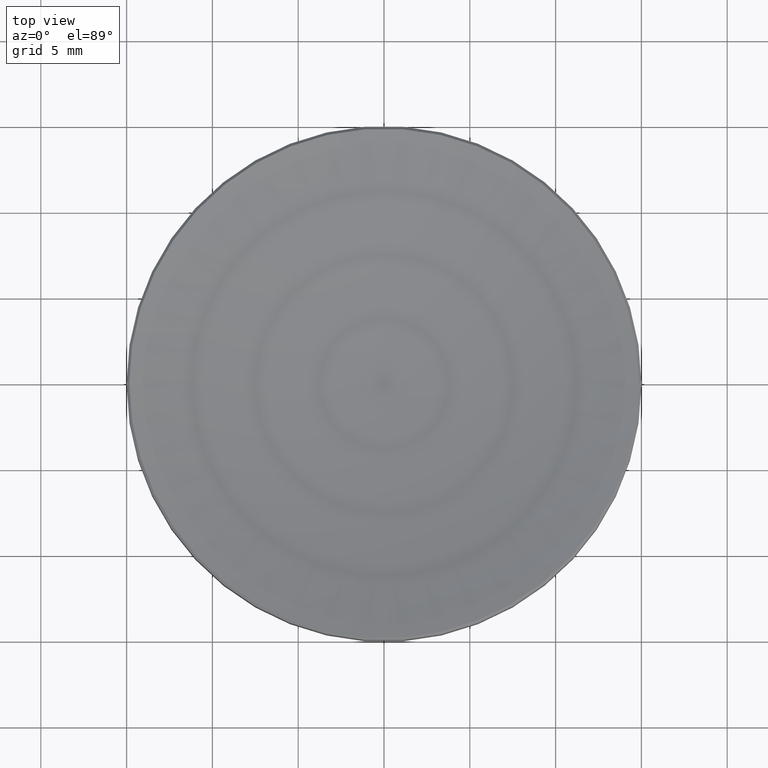
[diagram: clean part render]
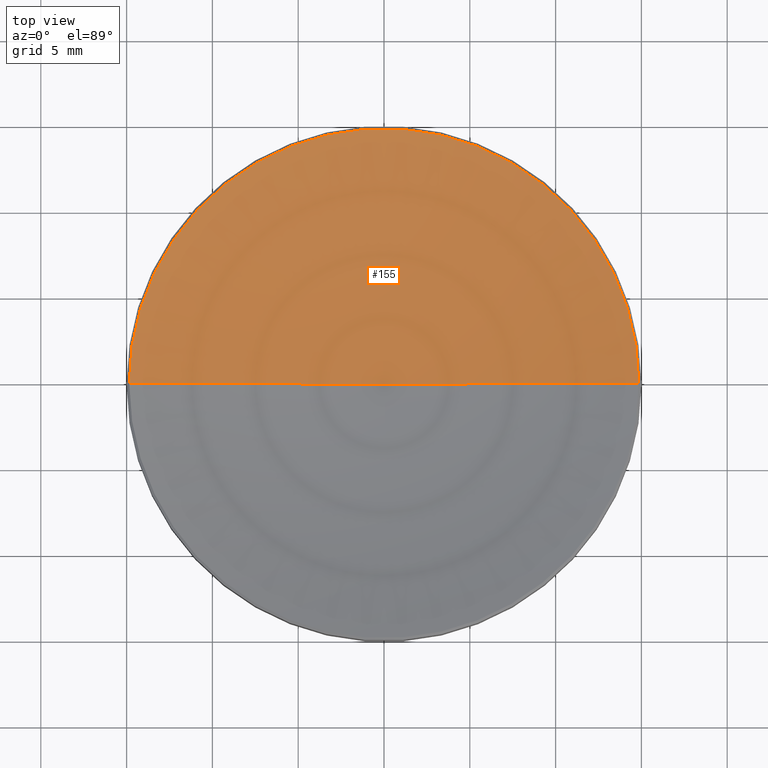
[diagram: same view with one face highlighted and labeled with its STEP entity id]
A machine part, top view. The second image highlights one B-rep face of the part: STEP entity #155.
In plain terms, the highlighted toroidal blend (fillet) surface has major radius 0.0114 mm and minor (blend) radius 51.64 mm.
Its self-contained STEP definition (entity closure, byte-faithful):
#9 = ORIENTED_EDGE ( 'NONE', *, *, #105, .F. ) ;
#17 = ORIENTED_EDGE ( 'NONE', *, *, #228, .T. ) ;
#18 = EDGE_LOOP ( 'NONE', ( #9, #176, #17 ) ) ;
#20 = CARTESIAN_POINT ( 'NONE',  ( 14.84640391126098180, 0.000000000000000000, 4.683596088739042429 ) ) ;
#22 = DIRECTION ( 'NONE',  ( 0.000000000000000000, -1.000000000000000000, 0.000000000000000000 ) ) ;
#31 = DIRECTION ( 'NONE',  ( -0.000000000000000000, -0.000000000000000000, 1.000000000000000000 ) ) ;
#42 = VERTEX_POINT ( 'NONE', #262 ) ;
#45 = CARTESIAN_POINT ( 'NONE',  ( 0.01138314681477931023, -1.394033431094387055E-18, 54.13999874539084800 ) ) ;
#47 = CIRCLE ( 'NONE', #232, 51.64000000000000057 ) ;
#54 = AXIS2_PLACEMENT_3D ( 'NONE', #181, #31, #115 ) ;
#67 = DIRECTION ( 'NONE',  ( -1.000000000000000000, 1.224646799147353207E-16, 0.000000000000000000 ) ) ;
#73 = AXIS2_PLACEMENT_3D ( 'NONE', #108, #87, #212 ) ;
#87 = DIRECTION ( 'NONE',  ( -0.000000000000000000, -0.000000000000000000, 1.000000000000000000 ) ) ;
#105 = EDGE_CURVE ( 'NONE', #139, #42, #47, .T. ) ;
#108 = CARTESIAN_POINT ( 'NONE',  ( 0.000000000000000000, 0.000000000000000000, 54.13999874539084800 ) ) ;
#115 = DIRECTION ( 'NONE',  ( 1.000000000000000000, 0.000000000000000000, 0.000000000000000000 ) ) ;
#129 = FACE_OUTER_BOUND ( 'NONE', #18, .T. ) ;
#139 = VERTEX_POINT ( 'NONE', #150 ) ;
#149 = EDGE_CURVE ( 'NONE', #139, #165, #225, .T. ) ;
#150 = CARTESIAN_POINT ( 'NONE',  ( 0.000000000000000000, 0.000000000000000000, 2.500000000000000000 ) ) ;
#153 = CARTESIAN_POINT ( 'NONE',  ( -0.01138314681477931023, 0.000000000000000000, 54.13999874539084800 ) ) ;
#155 = ADVANCED_FACE ( 'NONE', ( #129 ), #196, .F. ) ;
#165 = VERTEX_POINT ( 'NONE', #20 ) ;
#176 = ORIENTED_EDGE ( 'NONE', *, *, #149, .T. ) ;
#181 = CARTESIAN_POINT ( 'NONE',  ( 0.000000000000000000, 0.000000000000000000, 4.683596088739042429 ) ) ;
#182 = AXIS2_PLACEMENT_3D ( 'NONE', #153, #22, #195 ) ;
#195 = DIRECTION ( 'NONE',  ( 0.000000000000000000, 0.000000000000000000, -1.000000000000000000 ) ) ;
#196 = TOROIDAL_SURFACE ( 'NONE', #73, -0.01138314681477931023, 51.64000000000000057 ) ;
#212 = DIRECTION ( 'NONE',  ( 1.000000000000000000, 0.000000000000000000, 0.000000000000000000 ) ) ;
#225 = CIRCLE ( 'NONE', #182, 51.64000000000000057 ) ;
#228 = EDGE_CURVE ( 'NONE', #165, #42, #241, .T. ) ;
#229 = DIRECTION ( 'NONE',  ( 1.224646799147353207E-16, 1.000000000000000000, 0.000000000000000000 ) ) ;
#232 = AXIS2_PLACEMENT_3D ( 'NONE', #45, #229, #67 ) ;
#241 = CIRCLE ( 'NONE', #54, 14.84640391126096759 ) ;
#262 = CARTESIAN_POINT ( 'NONE',  ( -14.84640391126098180, 1.818160102877450543E-15, 4.683596088739042429 ) ) ;